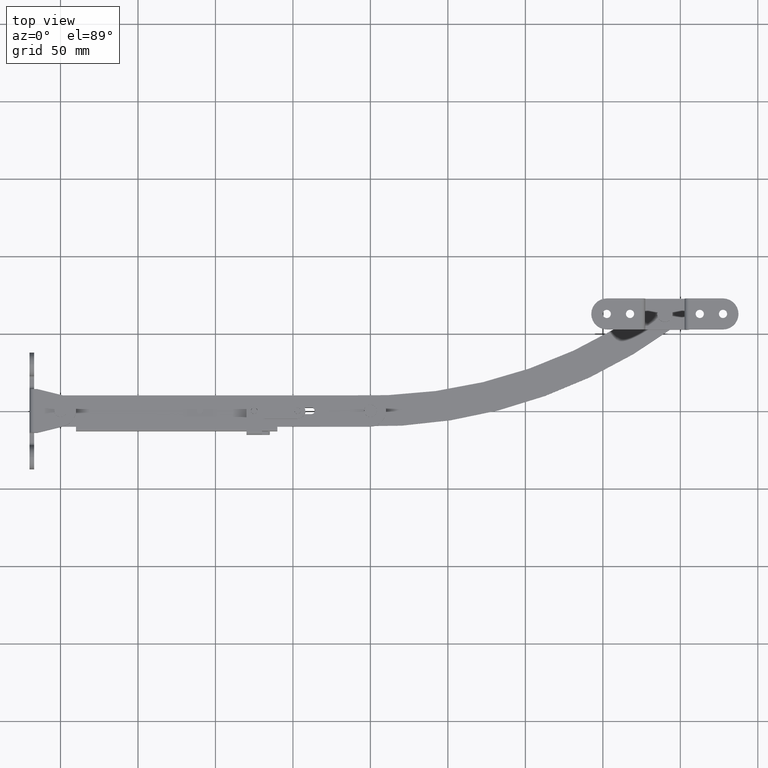
[diagram: clean part render]
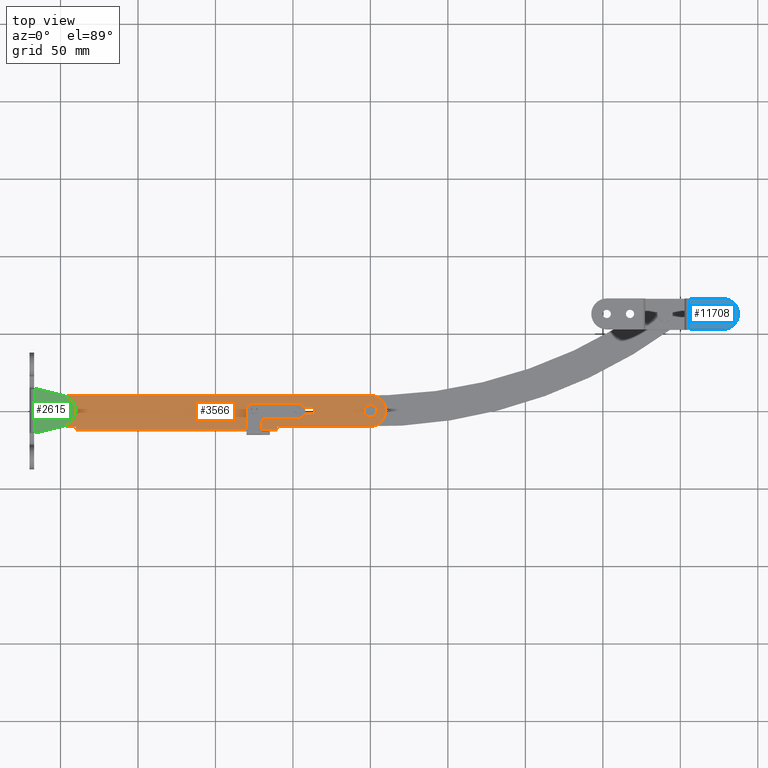
[diagram: same view with three faces highlighted in distinct colors, each labeled with its STEP entity id]
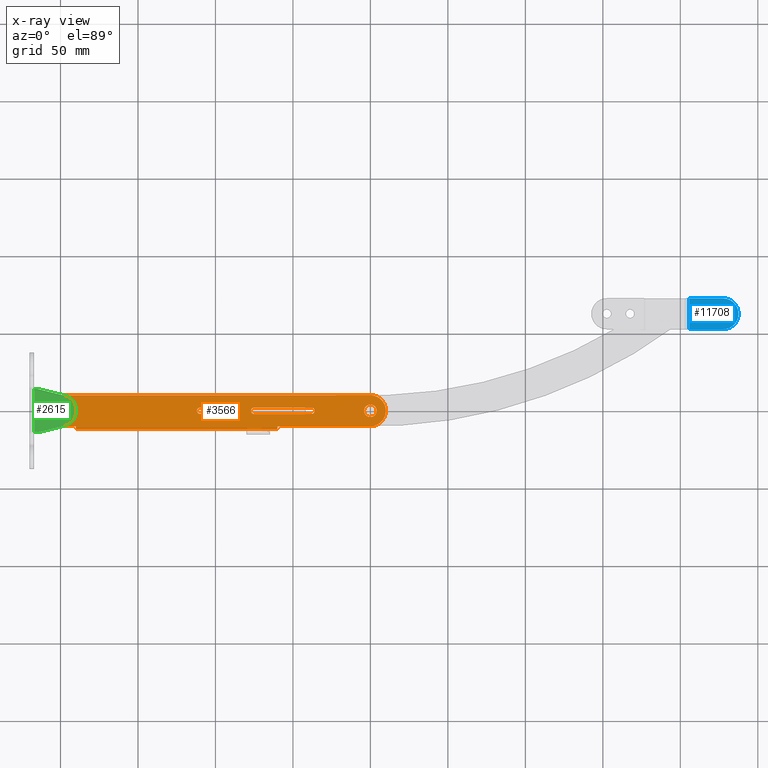
[diagram: x-ray of the same camera — body ghosted, the three highlighted faces saturated]
A machine part, top view with three faces highlighted in distinct colors.
The next image is the same camera in x-ray (body ghosted, the three faces saturated) — at least one of them is partly hidden behind the body in this view.
Their STEP definitions:

[orange] entity #3566 — the highlighted planar face has unit normal (0, 0, -1).
#168 = FACE_OUTER_BOUND ( 'NONE', #2902, .T. ) ;
#199 = DIRECTION ( 'NONE',  ( 1.000000000000000000, 0.0000000000000000000, 0.0000000000000000000 ) ) ;
#348 = ORIENTED_EDGE ( 'NONE', *, *, #15762, .T. ) ;
#366 = VERTEX_POINT ( 'NONE', #4563 ) ;
#500 = VERTEX_POINT ( 'NONE', #5359 ) ;
#518 = EDGE_CURVE ( 'NONE', #8652, #11202, #8792, .T. ) ;
#609 = ORIENTED_EDGE ( 'NONE', *, *, #14970, .T. ) ;
#887 = ORIENTED_EDGE ( 'NONE', *, *, #5879, .T. ) ;
#962 = AXIS2_PLACEMENT_3D ( 'NONE', #11617, #3873, #12903 ) ;
#1050 = CARTESIAN_POINT ( 'NONE',  ( 199.9999689999999900, 0.0000000000000000000, 6.999999999999900500 ) ) ;
#1059 = CARTESIAN_POINT ( 'NONE',  ( 0.0000000000000000000, 0.0000000000000000000, 6.999999999999900500 ) ) ;
#1063 = LINE ( 'NONE', #1444, #10569 ) ;
#1193 = ORIENTED_EDGE ( 'NONE', *, *, #9964, .T. ) ;
#1306 = DIRECTION ( 'NONE',  ( -1.000000000000000000, 0.0000000000000000000, -2.255140070863438400E-015 ) ) ;
#1308 = DIRECTION ( 'NONE',  ( 0.0000000000000000000, -1.000000000000000000, 0.0000000000000000000 ) ) ;
#1313 = VERTEX_POINT ( 'NONE', #1919 ) ;
#1444 = CARTESIAN_POINT ( 'NONE',  ( -1.554348274367644900E-014, 10.00000000000000000, 7.000000000000000000 ) ) ;
#1450 = CARTESIAN_POINT ( 'NONE',  ( 161.9999689999999900, -2.100006000000000000, 6.999999999999900500 ) ) ;
#1498 = VERTEX_POINT ( 'NONE', #3599 ) ;
#1529 = EDGE_CURVE ( 'NONE', #1498, #13572, #3306, .T. ) ;
#1714 = ORIENTED_EDGE ( 'NONE', *, *, #9332, .F. ) ;
#1919 = CARTESIAN_POINT ( 'NONE',  ( 140.0000000000000000, -12.00000000000000000, 7.000000000000320600 ) ) ;
#2333 = CARTESIAN_POINT ( 'NONE',  ( 161.9999691466075000, -2.100000000000000100, 6.999999999999900500 ) ) ;
#2351 = DIRECTION ( 'NONE',  ( 1.000000000000000000, 0.0000000000000000000, 0.0000000000000000000 ) ) ;
#2355 = DIRECTION ( 'NONE',  ( 1.000000000000000000, 0.0000000000000000000, 0.0000000000000000000 ) ) ;
#2462 = CARTESIAN_POINT ( 'NONE',  ( 125.0000000000000000, -2.100006000000045300, 6.999999999999889900 ) ) ;
#2663 = CARTESIAN_POINT ( 'NONE',  ( 90.00000000000000000, 0.0000000000000000000, 6.999999999999900500 ) ) ;
#2684 = EDGE_LOOP ( 'NONE', ( #7024, #11948 ) ) ;
#2797 = AXIS2_PLACEMENT_3D ( 'NONE', #4621, #5896, #14919 ) ;
#2799 = AXIS2_PLACEMENT_3D ( 'NONE', #3023, #12064, #4327 ) ;
#2902 = EDGE_LOOP ( 'NONE', ( #1714, #3494, #9708, #12649, #7779, #9215, #13091, #3829, #8844 ) ) ;
#2906 = VECTOR ( 'NONE', #8150, 1000.000000000000000 ) ;
#2912 = AXIS2_PLACEMENT_3D ( 'NONE', #13236, #5495, #14512 ) ;
#3023 = CARTESIAN_POINT ( 'NONE',  ( 0.0000000000000000000, 0.0000000000000000000, 6.999999999999900500 ) ) ;
#3306 = CIRCLE ( 'NONE', #12727, 4.049999999999999800 ) ;
#3494 = ORIENTED_EDGE ( 'NONE', *, *, #10657, .T. ) ;
#3566 = ADVANCED_FACE ( 'NONE', ( #13920, #7051, #168, #13515, #10081 ), #12349, .F. ) ;
#3596 = DIRECTION ( 'NONE',  ( 1.000000000000000000, -0.0000000000000000000, -0.0000000000000000000 ) ) ;
#3599 = CARTESIAN_POINT ( 'NONE',  ( 4.049999999999999800, 0.0000000000000000000, 6.999999999999900500 ) ) ;
#3784 = AXIS2_PLACEMENT_3D ( 'NONE', #2663, #11716, #3979 ) ;
#3823 = CARTESIAN_POINT ( 'NONE',  ( 161.9999689999999900, 0.0000000000000000000, 6.999999999999900500 ) ) ;
#3829 = ORIENTED_EDGE ( 'NONE', *, *, #10258, .F. ) ;
#3873 = DIRECTION ( 'NONE',  ( -0.0000000000000000000, -0.0000000000000000000, -1.000000000000000000 ) ) ;
#3979 = DIRECTION ( 'NONE',  ( 1.000000000000000000, 0.0000000000000000000, 0.0000000000000000000 ) ) ;
#4002 = AXIS2_PLACEMENT_3D ( 'NONE', #13975, #6254, #15261 ) ;
#4101 = LINE ( 'NONE', #15732, #12778 ) ;
#4206 = AXIS2_PLACEMENT_3D ( 'NONE', #4878, #13913, #6179 ) ;
#4327 = DIRECTION ( 'NONE',  ( 1.000000000000000000, 0.0000000000000000000, 0.0000000000000000000 ) ) ;
#4448 = EDGE_CURVE ( 'NONE', #500, #7390, #16487, .T. ) ;
#4563 = CARTESIAN_POINT ( 'NONE',  ( -1.554348274367644900E-014, -9.999999999999799300, 7.000000000000000000 ) ) ;
#4621 = CARTESIAN_POINT ( 'NONE',  ( 10.10000000000000000, 987.0000000000000000, 6.999999999999889900 ) ) ;
#4648 = EDGE_CURVE ( 'NONE', #7390, #500, #12289, .T. ) ;
#4878 = CARTESIAN_POINT ( 'NONE',  ( -1.554348274367644900E-014, 0.0000000000000000000, 7.000000000000000000 ) ) ;
#4882 = CARTESIAN_POINT ( 'NONE',  ( 92.00000000000000000, 0.0000000000000000000, 6.999999999999900500 ) ) ;
#4958 = VECTOR ( 'NONE', #14037, 1000.000000000000000 ) ;
#5104 = VERTEX_POINT ( 'NONE', #15446 ) ;
#5107 = LINE ( 'NONE', #11335, #8131 ) ;
#5114 = DIRECTION ( 'NONE',  ( 1.000000000000000000, 0.0000000000000000000, 0.0000000000000000000 ) ) ;
#5359 = CARTESIAN_POINT ( 'NONE',  ( 204.0499690000000000, 0.0000000000000000000, 6.999999999999900500 ) ) ;
#5364 = VERTEX_POINT ( 'NONE', #14879 ) ;
#5433 = DIRECTION ( 'NONE',  ( -1.000000000000000000, 0.0000000000000000000, -2.220497534810920000E-015 ) ) ;
#5495 = DIRECTION ( 'NONE',  ( -0.0000000000000000000, -0.0000000000000000000, -1.000000000000000000 ) ) ;
#5623 = EDGE_CURVE ( 'NONE', #14059, #5104, #12868, .T. ) ;
#5737 = VERTEX_POINT ( 'NONE', #8206 ) ;
#5767 = DIRECTION ( 'NONE',  ( -0.0000000000000000000, -0.0000000000000000000, -1.000000000000000000 ) ) ;
#5879 = EDGE_CURVE ( 'NONE', #7078, #7102, #12062, .T. ) ;
#5896 = DIRECTION ( 'NONE',  ( 0.0000000000000000000, 0.0000000000000000000, -1.000000000000000000 ) ) ;
#6067 = AXIS2_PLACEMENT_3D ( 'NONE', #16713, #9027, #1306 ) ;
#6179 = DIRECTION ( 'NONE',  ( -1.000000000000000000, 0.0000000000000000000, -2.255140518769849200E-015 ) ) ;
#6254 = DIRECTION ( 'NONE',  ( 2.220497534810920000E-015, 0.0000000000000000000, -1.000000000000000000 ) ) ;
#6288 = CARTESIAN_POINT ( 'NONE',  ( 199.9999688314125300, -9.999999999999799300, 7.000000000000450300 ) ) ;
#6474 = CARTESIAN_POINT ( 'NONE',  ( -4.049999999999999800, 4.959819536546779600E-016, 6.999999999999900500 ) ) ;
#6724 = ORIENTED_EDGE ( 'NONE', *, *, #1529, .T. ) ;
#6760 = CIRCLE ( 'NONE', #2799, 4.049999999999999800 ) ;
#6820 = EDGE_LOOP ( 'NONE', ( #6724, #1193 ) ) ;
#7011 = EDGE_CURVE ( 'NONE', #5737, #366, #15240, .T. ) ;
#7024 = ORIENTED_EDGE ( 'NONE', *, *, #5623, .T. ) ;
#7051 = FACE_BOUND ( 'NONE', #6820, .T. ) ;
#7078 = VERTEX_POINT ( 'NONE', #10271 ) ;
#7102 = VERTEX_POINT ( 'NONE', #7724 ) ;
#7174 = EDGE_LOOP ( 'NONE', ( #16080, #14535 ) ) ;
#7314 = CIRCLE ( 'NONE', #7616, 2.099999999999990800 ) ;
#7381 = DIRECTION ( 'NONE',  ( 0.0000000000000000000, 1.000000000000000000, 0.0000000000000000000 ) ) ;
#7390 = VERTEX_POINT ( 'NONE', #14579 ) ;
#7549 = VECTOR ( 'NONE', #7381, 1000.000000000000000 ) ;
#7616 = AXIS2_PLACEMENT_3D ( 'NONE', #3823, #12850, #5114 ) ;
#7724 = CARTESIAN_POINT ( 'NONE',  ( 164.0999689999999900, 0.0000000000000000000, 6.999999999999900500 ) ) ;
#7779 = ORIENTED_EDGE ( 'NONE', *, *, #9505, .F. ) ;
#7903 = CIRCLE ( 'NONE', #6067, 10.00000198615783000 ) ;
#8131 = VECTOR ( 'NONE', #3596, 1000.000000000000000 ) ;
#8150 = DIRECTION ( 'NONE',  ( 1.000000000000000000, -0.0000000000000000000, -0.0000000000000000000 ) ) ;
#8206 = CARTESIAN_POINT ( 'NONE',  ( 10.00000000000000000, -9.999999999999799300, 7.000000000000000000 ) ) ;
#8652 = VERTEX_POINT ( 'NONE', #2462 ) ;
#8792 = CIRCLE ( 'NONE', #10776, 2.099999999999990800 ) ;
#8844 = ORIENTED_EDGE ( 'NONE', *, *, #7011, .F. ) ;
#8958 = VECTOR ( 'NONE', #10482, 1000.000000000000000 ) ;
#9027 = DIRECTION ( 'NONE',  ( 2.220497534810920000E-015, 0.0000000000000000000, -1.000000000000000000 ) ) ;
#9073 = AXIS2_PLACEMENT_3D ( 'NONE', #1050, #10079, #2351 ) ;
#9156 = DIRECTION ( 'NONE',  ( 1.000000000000000000, 0.0000000000000000000, 2.220497534810920000E-015 ) ) ;
#9213 = CARTESIAN_POINT ( 'NONE',  ( 125.0000000000000000, 2.100006000000095100, 6.999999999999900500 ) ) ;
#9215 = ORIENTED_EDGE ( 'NONE', *, *, #13516, .F. ) ;
#9258 = VERTEX_POINT ( 'NONE', #10010 ) ;
#9332 = EDGE_CURVE ( 'NONE', #12459, #5737, #14405, .T. ) ;
#9505 = EDGE_CURVE ( 'NONE', #9258, #10344, #9773, .T. ) ;
#9708 = ORIENTED_EDGE ( 'NONE', *, *, #13457, .F. ) ;
#9773 = CIRCLE ( 'NONE', #4002, 10.00000198615783000 ) ;
#9964 = EDGE_CURVE ( 'NONE', #13572, #1498, #6760, .T. ) ;
#10010 = CARTESIAN_POINT ( 'NONE',  ( 209.9999709861578200, 1.986158023026284700E-006, 7.000000000000472500 ) ) ;
#10079 = DIRECTION ( 'NONE',  ( -0.0000000000000000000, -0.0000000000000000000, -1.000000000000000000 ) ) ;
#10081 = FACE_BOUND ( 'NONE', #12671, .T. ) ;
#10087 = DIRECTION ( 'NONE',  ( -0.0000000000000000000, -0.0000000000000000000, -1.000000000000000000 ) ) ;
#10258 = EDGE_CURVE ( 'NONE', #366, #13742, #12614, .T. ) ;
#10271 = CARTESIAN_POINT ( 'NONE',  ( 161.9999689999999900, 2.100006000000095100, 6.999999999999900500 ) ) ;
#10344 = VERTEX_POINT ( 'NONE', #6288 ) ;
#10482 = DIRECTION ( 'NONE',  ( -1.000000000000000000, -0.0000000000000000000, -0.0000000000000000000 ) ) ;
#10569 = VECTOR ( 'NONE', #9156, 1000.000000000000000 ) ;
#10657 = EDGE_CURVE ( 'NONE', #12459, #1313, #12810, .T. ) ;
#10715 = AXIS2_PLACEMENT_3D ( 'NONE', #13509, #5767, #14776 ) ;
#10776 = AXIS2_PLACEMENT_3D ( 'NONE', #14425, #14485, #199 ) ;
#11202 = VERTEX_POINT ( 'NONE', #9213 ) ;
#11335 = CARTESIAN_POINT ( 'NONE',  ( 125.0000000000000000, 2.100006000000095100, 6.999999999999900500 ) ) ;
#11504 = VERTEX_POINT ( 'NONE', #2333 ) ;
#11617 = CARTESIAN_POINT ( 'NONE',  ( 199.9999689999999900, 0.0000000000000000000, 6.999999999999900500 ) ) ;
#11712 = EDGE_CURVE ( 'NONE', #5104, #14059, #12578, .T. ) ;
#11716 = DIRECTION ( 'NONE',  ( -0.0000000000000000000, -0.0000000000000000000, -1.000000000000000000 ) ) ;
#11752 = LINE ( 'NONE', #14146, #14734 ) ;
#11782 = EDGE_CURVE ( 'NONE', #13742, #5364, #1063, .T. ) ;
#11855 = VERTEX_POINT ( 'NONE', #15683 ) ;
#11899 = EDGE_CURVE ( 'NONE', #10344, #11855, #4101, .T. ) ;
#11948 = ORIENTED_EDGE ( 'NONE', *, *, #11712, .T. ) ;
#12001 = CARTESIAN_POINT ( 'NONE',  ( 140.0000000000000000, -12.00000000000000000, 6.999999999999889900 ) ) ;
#12062 = CIRCLE ( 'NONE', #10715, 2.099999999999990800 ) ;
#12064 = DIRECTION ( 'NONE',  ( -0.0000000000000000000, -0.0000000000000000000, -1.000000000000000000 ) ) ;
#12289 = CIRCLE ( 'NONE', #962, 4.049999999999998000 ) ;
#12349 = PLANE ( 'NONE',  #2797 ) ;
#12459 = VERTEX_POINT ( 'NONE', #14085 ) ;
#12526 = CARTESIAN_POINT ( 'NONE',  ( 10.00000000000000000, -13.00000000000000000, 7.000000000000000000 ) ) ;
#12578 = CIRCLE ( 'NONE', #3784, 2.000000000000001800 ) ;
#12614 = CIRCLE ( 'NONE', #4206, 10.00000000000000000 ) ;
#12649 = ORIENTED_EDGE ( 'NONE', *, *, #11899, .F. ) ;
#12671 = EDGE_LOOP ( 'NONE', ( #15782, #348, #887, #15984, #609 ) ) ;
#12727 = AXIS2_PLACEMENT_3D ( 'NONE', #1059, #10087, #2355 ) ;
#12778 = VECTOR ( 'NONE', #5433, 1000.000000000000000 ) ;
#12810 = LINE ( 'NONE', #12001, #2906 ) ;
#12850 = DIRECTION ( 'NONE',  ( -0.0000000000000000000, -0.0000000000000000000, -1.000000000000000000 ) ) ;
#12868 = CIRCLE ( 'NONE', #2912, 2.000000000000001800 ) ;
#12903 = DIRECTION ( 'NONE',  ( 1.000000000000000000, 0.0000000000000000000, 0.0000000000000000000 ) ) ;
#13091 = ORIENTED_EDGE ( 'NONE', *, *, #11782, .F. ) ;
#13236 = CARTESIAN_POINT ( 'NONE',  ( 90.00000000000000000, 0.0000000000000000000, 6.999999999999900500 ) ) ;
#13457 = EDGE_CURVE ( 'NONE', #11855, #1313, #11752, .T. ) ;
#13509 = CARTESIAN_POINT ( 'NONE',  ( 161.9999689999999900, 0.0000000000000000000, 6.999999999999900500 ) ) ;
#13515 = FACE_BOUND ( 'NONE', #7174, .T. ) ;
#13516 = EDGE_CURVE ( 'NONE', #5364, #9258, #7903, .T. ) ;
#13572 = VERTEX_POINT ( 'NONE', #6474 ) ;
#13742 = VERTEX_POINT ( 'NONE', #14364 ) ;
#13913 = DIRECTION ( 'NONE',  ( 2.220497534810920000E-015, 0.0000000000000000000, -1.000000000000000000 ) ) ;
#13920 = FACE_BOUND ( 'NONE', #2684, .T. ) ;
#13975 = CARTESIAN_POINT ( 'NONE',  ( 199.9999689999999900, 1.986158023026284700E-006, 7.000000000000450300 ) ) ;
#14037 = DIRECTION ( 'NONE',  ( -1.000000000000000000, 0.0000000000000000000, -2.220497534810920000E-015 ) ) ;
#14059 = VERTEX_POINT ( 'NONE', #4882 ) ;
#14085 = CARTESIAN_POINT ( 'NONE',  ( 10.00000000000000000, -12.00000000000000000, 7.000000000000000000 ) ) ;
#14146 = CARTESIAN_POINT ( 'NONE',  ( 140.0000000000000000, -9.999999999999799300, 7.000000000000320600 ) ) ;
#14364 = CARTESIAN_POINT ( 'NONE',  ( -1.554348274367644900E-014, 10.00000000000000000, 7.000000000000000000 ) ) ;
#14405 = LINE ( 'NONE', #12526, #7549 ) ;
#14425 = CARTESIAN_POINT ( 'NONE',  ( 125.0000000000000000, 0.0000000000000000000, 6.999999999999900500 ) ) ;
#14485 = DIRECTION ( 'NONE',  ( -0.0000000000000000000, -0.0000000000000000000, -1.000000000000000000 ) ) ;
#14512 = DIRECTION ( 'NONE',  ( 1.000000000000000000, 0.0000000000000000000, 0.0000000000000000000 ) ) ;
#14535 = ORIENTED_EDGE ( 'NONE', *, *, #4648, .T. ) ;
#14579 = CARTESIAN_POINT ( 'NONE',  ( 195.9499690000000100, 4.959819536546781600E-016, 6.999999999999900500 ) ) ;
#14734 = VECTOR ( 'NONE', #1308, 1000.000000000000000 ) ;
#14776 = DIRECTION ( 'NONE',  ( 1.000000000000000000, 0.0000000000000000000, 0.0000000000000000000 ) ) ;
#14879 = CARTESIAN_POINT ( 'NONE',  ( 199.9910557339145200, 10.00000000000000000, 7.000000000000450300 ) ) ;
#14919 = DIRECTION ( 'NONE',  ( -1.000000000000000000, 0.0000000000000000000, 0.0000000000000000000 ) ) ;
#14970 = EDGE_CURVE ( 'NONE', #11504, #8652, #16201, .T. ) ;
#15240 = LINE ( 'NONE', #15321, #4958 ) ;
#15261 = DIRECTION ( 'NONE',  ( -1.000000000000000000, 0.0000000000000000000, -2.255140070863438400E-015 ) ) ;
#15321 = CARTESIAN_POINT ( 'NONE',  ( 10.00000000000000000, -9.999999999999799300, 7.000000000000000000 ) ) ;
#15446 = CARTESIAN_POINT ( 'NONE',  ( 88.00000000000000000, 2.449293598294703900E-016, 6.999999999999900500 ) ) ;
#15683 = CARTESIAN_POINT ( 'NONE',  ( 140.0000000000000000, -9.999999999999799300, 7.000000000000320600 ) ) ;
#15732 = CARTESIAN_POINT ( 'NONE',  ( 199.9999688314125300, -9.999999999999799300, 7.000000000000450300 ) ) ;
#15762 = EDGE_CURVE ( 'NONE', #11202, #7078, #5107, .T. ) ;
#15782 = ORIENTED_EDGE ( 'NONE', *, *, #518, .T. ) ;
#15977 = EDGE_CURVE ( 'NONE', #7102, #11504, #7314, .T. ) ;
#15984 = ORIENTED_EDGE ( 'NONE', *, *, #15977, .T. ) ;
#16080 = ORIENTED_EDGE ( 'NONE', *, *, #4448, .T. ) ;
#16201 = LINE ( 'NONE', #1450, #8958 ) ;
#16487 = CIRCLE ( 'NONE', #9073, 4.049999999999998000 ) ;
#16713 = CARTESIAN_POINT ( 'NONE',  ( 199.9999689999999900, 1.986158023026284700E-006, 7.000000000000450300 ) ) ;

[blue] entity #11708 — the highlighted planar face has unit normal (0, 0, 1).
#298 = AXIS2_PLACEMENT_3D ( 'NONE', #6443, #1329, #10341 ) ;
#314 = ORIENTED_EDGE ( 'NONE', *, *, #12118, .T. ) ;
#528 = DIRECTION ( 'NONE',  ( -1.000000000000000000, 0.0000000000000000000, 0.0000000000000000000 ) ) ;
#756 = CARTESIAN_POINT ( 'NONE',  ( 427.5396720000000000, 72.32917800000008400, 20.00000000000000000 ) ) ;
#909 = AXIS2_PLACEMENT_3D ( 'NONE', #13169, #5442, #14456 ) ;
#1329 = DIRECTION ( 'NONE',  ( 0.0000000000000000000, 0.0000000000000000000, 1.000000000000000000 ) ) ;
#1510 = CIRCLE ( 'NONE', #1838, 10.00000000000000900 ) ;
#1679 = CIRCLE ( 'NONE', #16717, 2.649999999999985700 ) ;
#1838 = AXIS2_PLACEMENT_3D ( 'NONE', #9618, #1894, #10920 ) ;
#1894 = DIRECTION ( 'NONE',  ( 0.0000000000000000000, 0.0000000000000000000, 1.000000000000000000 ) ) ;
#2081 = DIRECTION ( 'NONE',  ( 0.0000000000000000000, 0.0000000000000000000, -1.000000000000000000 ) ) ;
#2273 = VERTEX_POINT ( 'NONE', #6059 ) ;
#2397 = VERTEX_POINT ( 'NONE', #8839 ) ;
#2678 = FACE_BOUND ( 'NONE', #14727, .T. ) ;
#2938 = EDGE_LOOP ( 'NONE', ( #14892, #12177 ) ) ;
#3254 = VECTOR ( 'NONE', #14619, 1000.000000000000000 ) ;
#3271 = LINE ( 'NONE', #14444, #10144 ) ;
#3402 = CARTESIAN_POINT ( 'NONE',  ( 415.1896720000000300, 62.32917800000009800, 20.00000000000000000 ) ) ;
#3529 = ORIENTED_EDGE ( 'NONE', *, *, #11224, .T. ) ;
#4517 = AXIS2_PLACEMENT_3D ( 'NONE', #15971, #8271, #528 ) ;
#4928 = LINE ( 'NONE', #15572, #10603 ) ;
#5129 = CARTESIAN_POINT ( 'NONE',  ( 405.7896720000000000, 52.32917800000009100, 20.00000000000000000 ) ) ;
#5178 = CARTESIAN_POINT ( 'NONE',  ( 405.7896720000000000, 72.32917800000018400, 20.00000000000000000 ) ) ;
#5262 = DIRECTION ( 'NONE',  ( 0.0000000000000000000, 0.0000000000000000000, -1.000000000000000000 ) ) ;
#5442 = DIRECTION ( 'NONE',  ( 0.0000000000000000000, 0.0000000000000000000, 1.000000000000000000 ) ) ;
#5947 = CIRCLE ( 'NONE', #4517, 2.649999999999985700 ) ;
#6059 = CARTESIAN_POINT ( 'NONE',  ( 409.8896720000000200, 62.32917800000009800, 20.00000000000000000 ) ) ;
#6065 = VERTEX_POINT ( 'NONE', #3402 ) ;
#6073 = CIRCLE ( 'NONE', #15026, 2.649999999999985700 ) ;
#6443 = CARTESIAN_POINT ( 'NONE',  ( 437.5396720000000000, 1052.329178000000000, 20.00000000000000000 ) ) ;
#6722 = DIRECTION ( 'NONE',  ( -1.000000000000000000, -0.0000000000000000000, -0.0000000000000000000 ) ) ;
#7509 = ORIENTED_EDGE ( 'NONE', *, *, #11877, .F. ) ;
#7558 = CARTESIAN_POINT ( 'NONE',  ( 427.5396720000000000, 62.32917800000009800, 20.00000000000000000 ) ) ;
#7889 = CARTESIAN_POINT ( 'NONE',  ( 424.8896720000000200, 62.32917800000009800, 20.00000000000000000 ) ) ;
#8099 = DIRECTION ( 'NONE',  ( -1.000000000000000000, -0.0000000000000000000, -0.0000000000000000000 ) ) ;
#8116 = CIRCLE ( 'NONE', #909, 10.00000000000000900 ) ;
#8271 = DIRECTION ( 'NONE',  ( 0.0000000000000000000, 0.0000000000000000000, -1.000000000000000000 ) ) ;
#8732 = VERTEX_POINT ( 'NONE', #5178 ) ;
#8826 = VERTEX_POINT ( 'NONE', #7889 ) ;
#8839 = CARTESIAN_POINT ( 'NONE',  ( 427.5396720000000000, 52.32917800000009100, 20.00000000000000000 ) ) ;
#8863 = DIRECTION ( 'NONE',  ( -1.000000000000000000, 0.0000000000000000000, 0.0000000000000000000 ) ) ;
#9424 = VERTEX_POINT ( 'NONE', #15135 ) ;
#9544 = FACE_BOUND ( 'NONE', #2938, .T. ) ;
#9618 = CARTESIAN_POINT ( 'NONE',  ( 427.5396720000000000, 62.32917800000019800, 20.00000000000000000 ) ) ;
#9809 = CARTESIAN_POINT ( 'NONE',  ( 412.5396720000000000, 62.32917800000009800, 20.00000000000000000 ) ) ;
#10022 = EDGE_CURVE ( 'NONE', #6065, #2273, #5947, .T. ) ;
#10144 = VECTOR ( 'NONE', #6722, 1000.000000000000000 ) ;
#10341 = DIRECTION ( 'NONE',  ( 1.000000000000000000, 0.0000000000000000000, 0.0000000000000000000 ) ) ;
#10590 = EDGE_CURVE ( 'NONE', #11337, #8732, #4928, .T. ) ;
#10603 = VECTOR ( 'NONE', #8099, 1000.000000000000000 ) ;
#10613 = EDGE_LOOP ( 'NONE', ( #7509, #12224, #3529, #11396, #16154 ) ) ;
#10920 = DIRECTION ( 'NONE',  ( 1.000000000000000000, 0.0000000000000000000, 0.0000000000000000000 ) ) ;
#11118 = DIRECTION ( 'NONE',  ( -1.000000000000000000, 0.0000000000000000000, 0.0000000000000000000 ) ) ;
#11151 = EDGE_CURVE ( 'NONE', #8826, #9424, #12187, .T. ) ;
#11224 = EDGE_CURVE ( 'NONE', #13437, #11337, #1510, .T. ) ;
#11337 = VERTEX_POINT ( 'NONE', #756 ) ;
#11396 = ORIENTED_EDGE ( 'NONE', *, *, #10590, .T. ) ;
#11708 = ADVANCED_FACE ( 'NONE', ( #9544, #15974, #2678 ), #12831, .T. ) ;
#11877 = EDGE_CURVE ( 'NONE', #2397, #13447, #3271, .T. ) ;
#12118 = EDGE_CURVE ( 'NONE', #2273, #6065, #1679, .T. ) ;
#12177 = ORIENTED_EDGE ( 'NONE', *, *, #13268, .T. ) ;
#12187 = CIRCLE ( 'NONE', #15959, 2.649999999999985700 ) ;
#12224 = ORIENTED_EDGE ( 'NONE', *, *, #16584, .T. ) ;
#12643 = ORIENTED_EDGE ( 'NONE', *, *, #10022, .T. ) ;
#12762 = EDGE_CURVE ( 'NONE', #8732, #13447, #13560, .T. ) ;
#12831 = PLANE ( 'NONE',  #298 ) ;
#12994 = CARTESIAN_POINT ( 'NONE',  ( 427.5396720000000000, 62.32917800000009800, 20.00000000000000000 ) ) ;
#13169 = CARTESIAN_POINT ( 'NONE',  ( 427.5396720000000000, 62.32917800000019800, 20.00000000000000000 ) ) ;
#13268 = EDGE_CURVE ( 'NONE', #9424, #8826, #6073, .T. ) ;
#13342 = CARTESIAN_POINT ( 'NONE',  ( 405.7896720000000000, 1052.329178000000000, 20.00000000000000000 ) ) ;
#13437 = VERTEX_POINT ( 'NONE', #14096 ) ;
#13447 = VERTEX_POINT ( 'NONE', #5129 ) ;
#13560 = LINE ( 'NONE', #13342, #3254 ) ;
#14096 = CARTESIAN_POINT ( 'NONE',  ( 437.5396720000000000, 62.32917800000019800, 20.00000000000000000 ) ) ;
#14279 = DIRECTION ( 'NONE',  ( -1.000000000000000000, 0.0000000000000000000, 0.0000000000000000000 ) ) ;
#14444 = CARTESIAN_POINT ( 'NONE',  ( 0.0000000000000000000, 52.32917800000009100, 20.00000000000000000 ) ) ;
#14456 = DIRECTION ( 'NONE',  ( 1.000000000000000000, 0.0000000000000000000, 0.0000000000000000000 ) ) ;
#14619 = DIRECTION ( 'NONE',  ( 0.0000000000000000000, -1.000000000000000000, 0.0000000000000000000 ) ) ;
#14727 = EDGE_LOOP ( 'NONE', ( #314, #12643 ) ) ;
#14892 = ORIENTED_EDGE ( 'NONE', *, *, #11151, .T. ) ;
#15026 = AXIS2_PLACEMENT_3D ( 'NONE', #7558, #16542, #8863 ) ;
#15135 = CARTESIAN_POINT ( 'NONE',  ( 430.1896719999999700, 62.32917800000009800, 20.00000000000000000 ) ) ;
#15572 = CARTESIAN_POINT ( 'NONE',  ( 0.0000000000000000000, 72.32917800000008400, 20.00000000000000000 ) ) ;
#15959 = AXIS2_PLACEMENT_3D ( 'NONE', #12994, #5262, #14279 ) ;
#15971 = CARTESIAN_POINT ( 'NONE',  ( 412.5396720000000000, 62.32917800000009800, 20.00000000000000000 ) ) ;
#15974 = FACE_OUTER_BOUND ( 'NONE', #10613, .T. ) ;
#16154 = ORIENTED_EDGE ( 'NONE', *, *, #12762, .T. ) ;
#16542 = DIRECTION ( 'NONE',  ( 0.0000000000000000000, 0.0000000000000000000, -1.000000000000000000 ) ) ;
#16584 = EDGE_CURVE ( 'NONE', #2397, #13437, #8116, .T. ) ;
#16717 = AXIS2_PLACEMENT_3D ( 'NONE', #9809, #2081, #11118 ) ;

[green] entity #2615 — the highlighted planar face has unit normal (0, -0, -1).
#258 = LINE ( 'NONE', #7442, #14002 ) ;
#360 = DIRECTION ( 'NONE',  ( 0.9708957934048363400, -0.2395023138693935800, 2.772052373518060900E-018 ) ) ;
#740 = CARTESIAN_POINT ( 'NONE',  ( 980.0000000000000000, 14.00000000000000000, 11.00000000000000000 ) ) ;
#763 = DIRECTION ( 'NONE',  ( -1.000000000000000000, 0.0000000000000000000, 0.0000000000000000000 ) ) ;
#792 = DIRECTION ( 'NONE',  ( 0.0000000000000000000, 1.000000000000000000, -1.239088197126289800E-016 ) ) ;
#802 = DIRECTION ( 'NONE',  ( -0.0000000000000000000, -1.000000000000000000, 1.239088197126289800E-016 ) ) ;
#893 = CIRCLE ( 'NONE', #6885, 10.00000000000000000 ) ;
#1174 = ORIENTED_EDGE ( 'NONE', *, *, #10389, .F. ) ;
#1227 = CARTESIAN_POINT ( 'NONE',  ( 980.0000000000000000, -14.00000000000000000, 11.00000000000000000 ) ) ;
#1524 = VECTOR ( 'NONE', #11555, 1000.000000000000000 ) ;
#1715 = AXIS2_PLACEMENT_3D ( 'NONE', #740, #8537, #792 ) ;
#1923 = VECTOR ( 'NONE', #4061, 999.9999999999998900 ) ;
#2470 = CARTESIAN_POINT ( 'NONE',  ( 0.0000000000000000000, 0.0000000000000000000, 11.00000000000000000 ) ) ;
#2615 = ADVANCED_FACE ( 'NONE', ( #10774, #7320 ), #5926, .F. ) ;
#2694 = VECTOR ( 'NONE', #802, 1000.000000000000000 ) ;
#2753 = CARTESIAN_POINT ( 'NONE',  ( 0.0000000000000000000, 0.0000000000000000000, 11.00000000000000000 ) ) ;
#2954 = ORIENTED_EDGE ( 'NONE', *, *, #9415, .T. ) ;
#3457 = EDGE_LOOP ( 'NONE', ( #2954, #5406, #1174, #3977, #10015, #5765 ) ) ;
#3781 = DIRECTION ( 'NONE',  ( 1.000000000000000000, 0.0000000000000000000, 0.0000000000000000000 ) ) ;
#3893 = VERTEX_POINT ( 'NONE', #7773 ) ;
#3977 = ORIENTED_EDGE ( 'NONE', *, *, #9738, .F. ) ;
#4013 = CARTESIAN_POINT ( 'NONE',  ( 2.395022091249680200, -9.708953237444959000, 11.00000000000000000 ) ) ;
#4058 = DIRECTION ( 'NONE',  ( 1.000000000000000000, 0.0000000000000000000, 0.0000000000000000000 ) ) ;
#4061 = DIRECTION ( 'NONE',  ( -0.9708957908208887300, -0.2395023243442144000, 2.772052494755939000E-018 ) ) ;
#5341 = LINE ( 'NONE', #1227, #1524 ) ;
#5406 = ORIENTED_EDGE ( 'NONE', *, *, #11039, .T. ) ;
#5710 = LINE ( 'NONE', #14163, #2694 ) ;
#5765 = ORIENTED_EDGE ( 'NONE', *, *, #7369, .F. ) ;
#5926 = PLANE ( 'NONE',  #1715 ) ;
#5965 = CIRCLE ( 'NONE', #12418, 4.000000000000000000 ) ;
#6270 = AXIS2_PLACEMENT_3D ( 'NONE', #2470, #11525, #3781 ) ;
#6609 = LINE ( 'NONE', #15820, #9632 ) ;
#6850 = CARTESIAN_POINT ( 'NONE',  ( -17.00000000000000000, 14.00000000000000000, 11.00000000000000000 ) ) ;
#6885 = AXIS2_PLACEMENT_3D ( 'NONE', #16195, #8502, #763 ) ;
#7017 = EDGE_CURVE ( 'NONE', #16326, #9644, #8398, .T. ) ;
#7195 = ORIENTED_EDGE ( 'NONE', *, *, #7017, .T. ) ;
#7320 = FACE_OUTER_BOUND ( 'NONE', #3457, .T. ) ;
#7369 = EDGE_CURVE ( 'NONE', #9135, #14045, #6609, .T. ) ;
#7442 = CARTESIAN_POINT ( 'NONE',  ( 980.0000000000000000, 14.00000000000000000, 11.00000000000000000 ) ) ;
#7773 = CARTESIAN_POINT ( 'NONE',  ( 2.395019000000000000, -9.708954000000000300, 11.00000000000000000 ) ) ;
#8398 = CIRCLE ( 'NONE', #6270, 4.000000000000000000 ) ;
#8502 = DIRECTION ( 'NONE',  ( 0.0000000000000000000, -1.157421959200663900E-017, -1.000000000000000000 ) ) ;
#8537 = DIRECTION ( 'NONE',  ( 0.0000000000000000000, -1.239088197126289800E-016, -1.000000000000000000 ) ) ;
#8850 = EDGE_CURVE ( 'NONE', #9644, #16326, #5965, .T. ) ;
#8911 = CARTESIAN_POINT ( 'NONE',  ( -4.000000000000000000, 0.0000000000000000000, 11.00000000000000000 ) ) ;
#9097 = EDGE_CURVE ( 'NONE', #14045, #3893, #893, .T. ) ;
#9135 = VERTEX_POINT ( 'NONE', #14958 ) ;
#9415 = EDGE_CURVE ( 'NONE', #9135, #12773, #258, .T. ) ;
#9632 = VECTOR ( 'NONE', #360, 999.9999999999998900 ) ;
#9644 = VERTEX_POINT ( 'NONE', #8911 ) ;
#9738 = EDGE_CURVE ( 'NONE', #3893, #11427, #13034, .T. ) ;
#10015 = ORIENTED_EDGE ( 'NONE', *, *, #9097, .F. ) ;
#10389 = EDGE_CURVE ( 'NONE', #11427, #13388, #5341, .T. ) ;
#10774 = FACE_BOUND ( 'NONE', #14699, .T. ) ;
#11039 = EDGE_CURVE ( 'NONE', #12773, #13388, #5710, .T. ) ;
#11427 = VERTEX_POINT ( 'NONE', #16349 ) ;
#11525 = DIRECTION ( 'NONE',  ( -0.0000000000000000000, -0.0000000000000000000, -1.000000000000000000 ) ) ;
#11555 = DIRECTION ( 'NONE',  ( -1.000000000000000000, 0.0000000000000000000, 0.0000000000000000000 ) ) ;
#11795 = DIRECTION ( 'NONE',  ( -0.0000000000000000000, -0.0000000000000000000, -1.000000000000000000 ) ) ;
#12418 = AXIS2_PLACEMENT_3D ( 'NONE', #2753, #11795, #4058 ) ;
#12626 = CARTESIAN_POINT ( 'NONE',  ( 2.410058711234305000, 9.705236576632408700, 11.00000000000000000 ) ) ;
#12773 = VERTEX_POINT ( 'NONE', #6850 ) ;
#13034 = LINE ( 'NONE', #4013, #1923 ) ;
#13294 = CARTESIAN_POINT ( 'NONE',  ( 4.000000000000000000, 4.898587196589412800E-016, 11.00000000000000000 ) ) ;
#13388 = VERTEX_POINT ( 'NONE', #15323 ) ;
#14002 = VECTOR ( 'NONE', #16434, 1000.000000000000000 ) ;
#14045 = VERTEX_POINT ( 'NONE', #12626 ) ;
#14163 = CARTESIAN_POINT ( 'NONE',  ( -17.00000000000000000, -14.00000000000000000, 11.00000000000000000 ) ) ;
#14571 = ORIENTED_EDGE ( 'NONE', *, *, #8850, .T. ) ;
#14699 = EDGE_LOOP ( 'NONE', ( #14571, #7195 ) ) ;
#14958 = CARTESIAN_POINT ( 'NONE',  ( -15.00007680708234900, 14.00000000000000000, 11.00000000000000000 ) ) ;
#15323 = CARTESIAN_POINT ( 'NONE',  ( -17.00000000000000000, -14.00000000000000000, 11.00000000000000000 ) ) ;
#15820 = CARTESIAN_POINT ( 'NONE',  ( 2.395020265660790000, 9.708946287330841000, 11.00000000000000000 ) ) ;
#16195 = CARTESIAN_POINT ( 'NONE',  ( 0.0000000000000000000, 1.273164155120732000E-016, 11.00000000000000000 ) ) ;
#16326 = VERTEX_POINT ( 'NONE', #13294 ) ;
#16349 = CARTESIAN_POINT ( 'NONE',  ( -15.00004599999999900, -14.00000000000000000, 11.00000000000000000 ) ) ;
#16434 = DIRECTION ( 'NONE',  ( -1.000000000000000000, 0.0000000000000000000, 0.0000000000000000000 ) ) ;